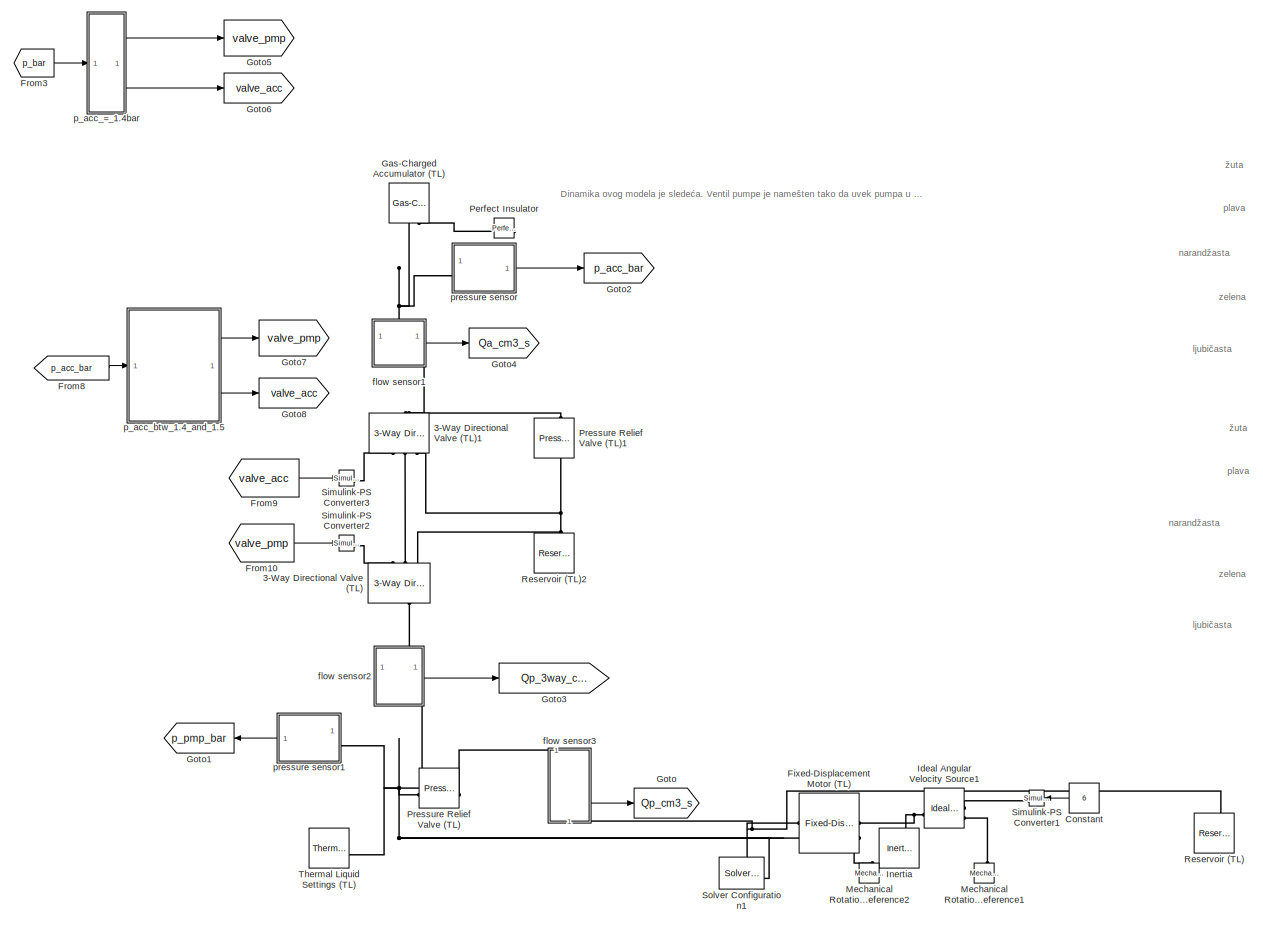
[diagram: root canvas - part 1/2, most of the canvas]
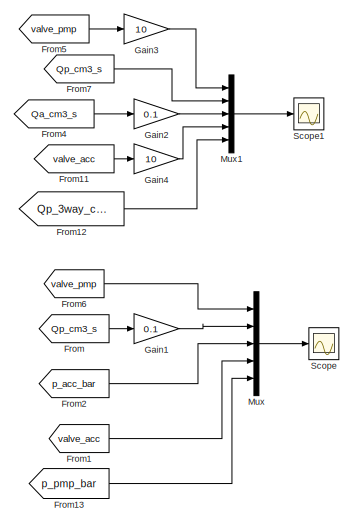
[diagram: root canvas - part 2/2, middle right region]
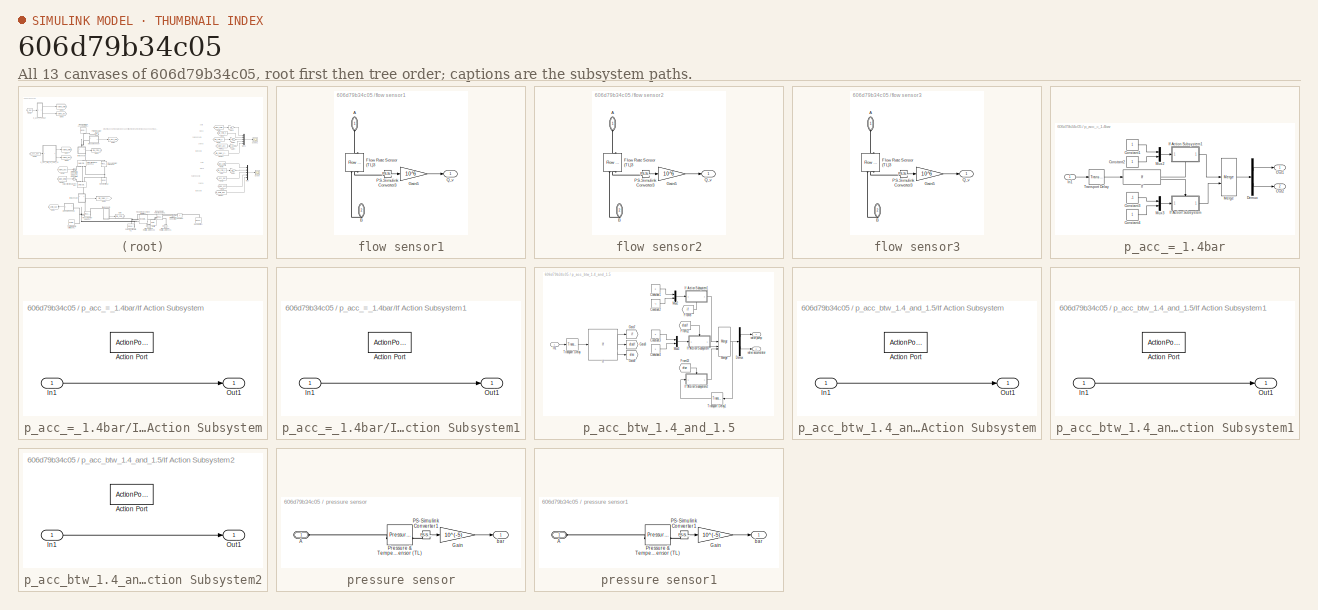
[diagram: thumbnail index - all 13 canvases of the model, root first then tree order]
MODEL slx_606d79b34c05
KIND model
CONFIG AbsTol = auto
CONFIG EnableMultiTasking = off
CONFIG FixedStep = auto
CONFIG MaxStep = auto
CONFIG MinStep = auto
CONFIG RelTol = 1e-3
CONFIG SampleTimeConstraint = Unconstrained
CONFIG SolverName = VariableStepAuto
CONFIG StartTime = 0.0
CONFIG StopTime = 30
BLOCK [Reference] 3-Way Directional Valve (TL)  REF=SimscapeFluids_lib/Thermal Liquid/Valves & Orifices/Directional Control
Valves/3-Way Directional
Valve (TL)
  NameLocation = left
  SourceBlock = SimscapeFluids_lib/Thermal Liquid/Valves & Orifices/Directional Control\nValves/3-Way Directional\nValve (TL)
  SourceType = 3-Way Directional\nValve (TL)
BLOCK [Reference] 3-Way Directional Valve (TL)1  REF=SimscapeFluids_lib/Thermal Liquid/Valves & Orifices/Directional Control
Valves/3-Way Directional
Valve (TL)
  NameLocation = right
  SourceBlock = SimscapeFluids_lib/Thermal Liquid/Valves & Orifices/Directional Control\nValves/3-Way Directional\nValve (TL)
  SourceType = 3-Way Directional\nValve (TL)
BLOCK [Constant] Constant
  NameLocation = top
  Value = 6
BLOCK [Reference] Fixed-Displacement Motor (TL)  REF=SimscapeFluids_lib/Thermal Liquid/Pumps & Motors/Fixed-Displacement
Motor (TL)
  SourceBlock = SimscapeFluids_lib/Thermal Liquid/Pumps & Motors/Fixed-Displacement\nMotor (TL)
  SourceType = Fixed-Displacement\nMotor (TL)
BLOCK [From] From
  GotoTag = Qp_cm3_s
BLOCK [From] From1
  GotoTag = valve_acc
BLOCK [From] From10
  GotoTag = valve_pmp
BLOCK [From] From11
  GotoTag = valve_acc
BLOCK [From] From12
  GotoTag = Qp_3way_cm3_s
BLOCK [From] From13
  GotoTag = p_pmp_bar
BLOCK [From] From2
  GotoTag = p_acc_bar
BLOCK [From] From3
  Commented = on
  GotoTag = p_bar
BLOCK [From] From4
  GotoTag = Qa_cm3_s
BLOCK [From] From5
  GotoTag = valve_pmp
BLOCK [From] From6
  GotoTag = valve_pmp
BLOCK [From] From7
  GotoTag = Qp_cm3_s
BLOCK [From] From8
  GotoTag = p_acc_bar
BLOCK [From] From9
  GotoTag = valve_acc
BLOCK [Gain] Gain1
  Gain = 0.1
BLOCK [Gain] Gain2
  Gain = 0.1
BLOCK [Gain] Gain3
  Gain = 10
BLOCK [Gain] Gain4
  Gain = 10
BLOCK [Reference] Gas-Charged Accumulator (TL)  REF=SimscapeFluids_lib/Thermal Liquid/Tanks & Accumulators/Gas-Charged
Accumulator (TL)
  NameLocation = right
  SourceBlock = SimscapeFluids_lib/Thermal Liquid/Tanks & Accumulators/Gas-Charged\nAccumulator (TL)
  SourceType = Gas-Charged\nAccumulator (TL)
BLOCK [Goto] Goto
  GotoTag = Qp_cm3_s
BLOCK [Goto] Goto1
  GotoTag = p_pmp_bar
  NameLocation = top
BLOCK [Goto] Goto2
  GotoTag = p_acc_bar
BLOCK [Goto] Goto3
  GotoTag = Qp_3way_cm3_s
BLOCK [Goto] Goto4
  GotoTag = Qa_cm3_s
BLOCK [Goto] Goto5
  Commented = on
  GotoTag = valve_pmp
BLOCK [Goto] Goto6
  Commented = on
  GotoTag = valve_acc
BLOCK [Goto] Goto7
  GotoTag = valve_pmp
BLOCK [Goto] Goto8
  GotoTag = valve_acc
BLOCK [Reference] Ideal Angular Velocity Source1  REF=fl_lib/Mechanical/Mechanical Sources/Ideal Angular
Velocity Source
  SourceBlock = fl_lib/Mechanical/Mechanical Sources/Ideal Angular\nVelocity Source
  SourceType = Ideal Angular\nVelocity Source
BLOCK [Reference] Inertia  REF=fl_lib/Mechanical/Rotational Elements/Inertia
  NameLocation = right
  SourceBlock = fl_lib/Mechanical/Rotational Elements/Inertia
  SourceType = Inertia
BLOCK [Reference] Mechanical Rotational Reference1  REF=fl_lib/Mechanical/Rotational Elements/Mechanical
Rotational Reference
  NameLocation = right
  SourceBlock = fl_lib/Mechanical/Rotational Elements/Mechanical\nRotational Reference
  SourceType = Mechanical\nRotational Reference
BLOCK [Reference] Mechanical Rotational Reference2  REF=fl_lib/Mechanical/Rotational Elements/Mechanical
Rotational Reference
  NameLocation = right
  SourceBlock = fl_lib/Mechanical/Rotational Elements/Mechanical\nRotational Reference
  SourceType = Mechanical\nRotational Reference
BLOCK [Mux] Mux
  DisplayOption = bar
  Inputs = 5
BLOCK [Mux] Mux1
  DisplayOption = bar
  Inputs = 5
BLOCK [Reference] Perfect Insulator  REF=fl_lib/Thermal/Thermal Elements/Perfect Insulator
  NameLocation = top
  SourceBlock = fl_lib/Thermal/Thermal Elements/Perfect Insulator
  SourceType = Perfect Insulator
BLOCK [Reference] Pressure Relief Valve (TL)  REF=SimscapeFluids_lib/Thermal Liquid/Valves & Orifices/Pressure Control
Valves/Pressure Relief
Valve (TL)
  SourceBlock = SimscapeFluids_lib/Thermal Liquid/Valves & Orifices/Pressure Control\nValves/Pressure Relief\nValve (TL)
  SourceType = Pressure Relief\nValve (TL)
BLOCK [Reference] Pressure Relief Valve (TL)1  REF=SimscapeFluids_lib/Thermal Liquid/Valves & Orifices/Pressure Control
Valves/Pressure Relief
Valve (TL)
  NameLocation = left
  SourceBlock = SimscapeFluids_lib/Thermal Liquid/Valves & Orifices/Pressure Control\nValves/Pressure Relief\nValve (TL)
  SourceType = Pressure Relief\nValve (TL)
BLOCK [Reference] Reservoir (TL)  REF=fl_lib/Thermal Liquid/Elements/Reservoir (TL)
  NameLocation = right
  SourceBlock = fl_lib/Thermal Liquid/Elements/Reservoir (TL)
  SourceType = Reservoir (TL)
BLOCK [Reference] Reservoir (TL)2  REF=fl_lib/Thermal Liquid/Elements/Reservoir (TL)
  NameLocation = right
  SourceBlock = fl_lib/Thermal Liquid/Elements/Reservoir (TL)
  SourceType = Reservoir (TL)
BLOCK [Scope] Scope
  Floating = off
  NumInputPorts = 1
  ScopeSpecificationString = Simulink.scopes.TimeScopeBlockCfg('CurrentConfiguration', extmgr.ConfigurationSet(extmgr.Configuration('Core','General UI',true),extmgr.Configuration('Core','Source UI',true),extmgr.Configuration('Sources','WiredSimulink',true),extmgr.Configuration('Visuals','Time Domain',true,'SerializedDisplays',{struct('MinYLimReal','-1.46602','MaxYLimReal','3.19416','YLabelReal','','MinYLimMag','0.00000','MaxY...<+1728ch>
BLOCK [Scope] Scope1
  Floating = off
  NumInputPorts = 1
  ScopeSpecificationString = Simulink.scopes.TimeScopeBlockCfg('CurrentConfiguration', extmgr.ConfigurationSet(extmgr.Configuration('Core','General UI',true),extmgr.Configuration('Core','Source UI',true),extmgr.Configuration('Sources','WiredSimulink',true,'DataLoggingVariableName','ScopeData1'),extmgr.Configuration('Visuals','Time Domain',true,'SerializedDisplays',{struct('MinYLimReal','-19.27761','MaxYLimReal','73.49846','YL...<+1659ch>
BLOCK [Reference] Simulink-PS Converter1  REF=nesl_utility/Simulink-PS
Converter
  NameLocation = top
  SourceBlock = nesl_utility/Simulink-PS\nConverter
  SourceType = Simulink-PS\nConverter
BLOCK [Reference] Simulink-PS Converter2  REF=nesl_utility/Simulink-PS
Converter
  SourceBlock = nesl_utility/Simulink-PS\nConverter
  SourceType = Simulink-PS\nConverter
BLOCK [Reference] Simulink-PS Converter3  REF=nesl_utility/Simulink-PS
Converter
  SourceBlock = nesl_utility/Simulink-PS\nConverter
  SourceType = Simulink-PS\nConverter
BLOCK [Reference] Solver Configuration1  REF=nesl_utility/Solver
Configuration
  SourceBlock = nesl_utility/Solver\nConfiguration
  SourceType = Solver\nConfiguration
BLOCK [Reference] Thermal Liquid Settings (TL)  REF=fl_lib/Thermal Liquid/Utilities/Thermal Liquid
Settings (TL)
  SourceBlock = fl_lib/Thermal Liquid/Utilities/Thermal Liquid\nSettings (TL)
  SourceType = Thermal Liquid\nSettings (TL)
BLOCK [SubSystem] flow sensor1
  PortSchema = {"entries":[{"content":{"sides":[{"content":{},"type":"ConnectorPlacement.EquallySpacedRectSide","uuid":"64eebb38-407b-4473-bb63-6fc68657ced3"},{"content":{"connectorIds":["Out1"],"side":"RIGHT"},"type":"ConnectorPlacement.EquallySpacedRectSide","uuid":"fe4642c7-b9bb-4607-97dc-199c5570e8b5"},{"content":{"connectorIds":["LConn1"],"side":"TOP"},"type":"ConnectorPlacement.EquallySpacedRectSide","uuid...<+378ch>
BLOCK [PMIOPort] flow sensor1/A
  NameLocation = left
  Side = Left
BLOCK [PMIOPort] flow sensor1/B
  NameLocation = left
  Port = 2
  Side = Right
BLOCK [Reference] flow sensor1/Flow Rate Sensor (TL)3  REF=fl_lib/Thermal Liquid/Sensors/Flow Rate Sensor
(TL)
  NameLocation = left
  SourceBlock = fl_lib/Thermal Liquid/Sensors/Flow Rate Sensor\n(TL)
  SourceType = Flow Rate Sensor\n(TL)
BLOCK [Gain] flow sensor1/Gain5
  Gain = 10^6
BLOCK [Reference] flow sensor1/PS-Simulink Converter3  REF=nesl_utility/PS-Simulink
Converter
  SourceBlock = nesl_utility/PS-Simulink\nConverter
  SourceType = PS-Simulink\nConverter
BLOCK [Outport] flow sensor1/Q_v
BLOCK [SubSystem] flow sensor2
  NameLocation = left
  PortSchema = {"entries":[{"content":{"sides":[{"content":{},"type":"ConnectorPlacement.EquallySpacedRectSide","uuid":"64eebb38-407b-4473-bb63-6fc68657ced3"},{"content":{"connectorIds":["Out1"],"side":"RIGHT"},"type":"ConnectorPlacement.EquallySpacedRectSide","uuid":"fe4642c7-b9bb-4607-97dc-199c5570e8b5"},{"content":{"connectorIds":["LConn1"],"side":"TOP"},"type":"ConnectorPlacement.EquallySpacedRectSide","uuid...<+378ch>
BLOCK [PMIOPort] flow sensor2/A
  NameLocation = left
  Side = Left
BLOCK [PMIOPort] flow sensor2/B
  NameLocation = left
  Port = 2
  Side = Right
BLOCK [Reference] flow sensor2/Flow Rate Sensor (TL)3  REF=fl_lib/Thermal Liquid/Sensors/Flow Rate Sensor
(TL)
  NameLocation = left
  SourceBlock = fl_lib/Thermal Liquid/Sensors/Flow Rate Sensor\n(TL)
  SourceType = Flow Rate Sensor\n(TL)
BLOCK [Gain] flow sensor2/Gain5
  Gain = 10^6
BLOCK [Reference] flow sensor2/PS-Simulink Converter3  REF=nesl_utility/PS-Simulink
Converter
  SourceBlock = nesl_utility/PS-Simulink\nConverter
  SourceType = PS-Simulink\nConverter
BLOCK [Outport] flow sensor2/Q_v
BLOCK [SubSystem] flow sensor3
  PortSchema = {"entries":[{"content":{"sides":[{"content":{},"type":"ConnectorPlacement.EquallySpacedRectSide","uuid":"64eebb38-407b-4473-bb63-6fc68657ced3"},{"content":{"side":"RIGHT"},"type":"ConnectorPlacement.EquallySpacedRectSide","uuid":"fe4642c7-b9bb-4607-97dc-199c5570e8b5"},{"content":{"connectorIds":["LConn1"],"side":"TOP"},"type":"ConnectorPlacement.EquallySpacedRectSide","uuid":"f27d07a7-79fc-4ae0-b6...<+361ch>
BLOCK [PMIOPort] flow sensor3/A
  NameLocation = left
  Side = Left
BLOCK [PMIOPort] flow sensor3/B
  NameLocation = left
  Port = 2
  Side = Right
BLOCK [Reference] flow sensor3/Flow Rate Sensor (TL)3  REF=fl_lib/Thermal Liquid/Sensors/Flow Rate Sensor
(TL)
  NameLocation = left
  SourceBlock = fl_lib/Thermal Liquid/Sensors/Flow Rate Sensor\n(TL)
  SourceType = Flow Rate Sensor\n(TL)
BLOCK [Gain] flow sensor3/Gain5
  Gain = 10^6
BLOCK [Reference] flow sensor3/PS-Simulink Converter3  REF=nesl_utility/PS-Simulink
Converter
  SourceBlock = nesl_utility/PS-Simulink\nConverter
  SourceType = PS-Simulink\nConverter
BLOCK [Outport] flow sensor3/Q_v
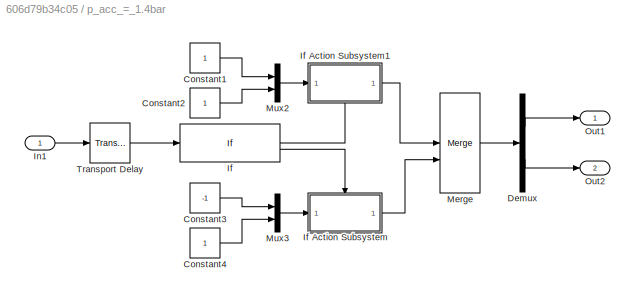
BLOCK [SubSystem] p_acc_=_1.4bar
  Commented = on
BLOCK [Constant] p_acc_=_1.4bar/Constant1
BLOCK [Constant] p_acc_=_1.4bar/Constant2
BLOCK [Constant] p_acc_=_1.4bar/Constant3
  Value = -1
BLOCK [Constant] p_acc_=_1.4bar/Constant4
BLOCK [Demux] p_acc_=_1.4bar/Demux
  Outputs = 2
BLOCK [If] p_acc_=_1.4bar/If
  IfExpression = u1 > 1.4
BLOCK [SubSystem] p_acc_=_1.4bar/If Action Subsystem
  TreatAsAtomicUnit = on
BLOCK [ActionPort] p_acc_=_1.4bar/If Action Subsystem/Action Port
  ActionPortLabel = else
BLOCK [Inport] p_acc_=_1.4bar/If Action Subsystem/In1
BLOCK [Outport] p_acc_=_1.4bar/If Action Subsystem/Out1
  InitialOutput = [0 0]
BLOCK [SubSystem] p_acc_=_1.4bar/If Action Subsystem1
  NameLocation = top
  TreatAsAtomicUnit = on
BLOCK [ActionPort] p_acc_=_1.4bar/If Action Subsystem1/Action Port
  ActionPortLabel = if(u1 > 1.4)
BLOCK [Inport] p_acc_=_1.4bar/If Action Subsystem1/In1
BLOCK [Outport] p_acc_=_1.4bar/If Action Subsystem1/Out1
  InitialOutput = [0 0]
BLOCK [Inport] p_acc_=_1.4bar/In1
BLOCK [Merge] p_acc_=_1.4bar/Merge
BLOCK [Mux] p_acc_=_1.4bar/Mux2
  DisplayOption = bar
  Inputs = 2
BLOCK [Mux] p_acc_=_1.4bar/Mux3
  DisplayOption = bar
  Inputs = 2
BLOCK [Outport] p_acc_=_1.4bar/Out1
BLOCK [Outport] p_acc_=_1.4bar/Out2
  Port = 2
BLOCK [TransportDelay] p_acc_=_1.4bar/Transport Delay
  DelayTime = 0.001
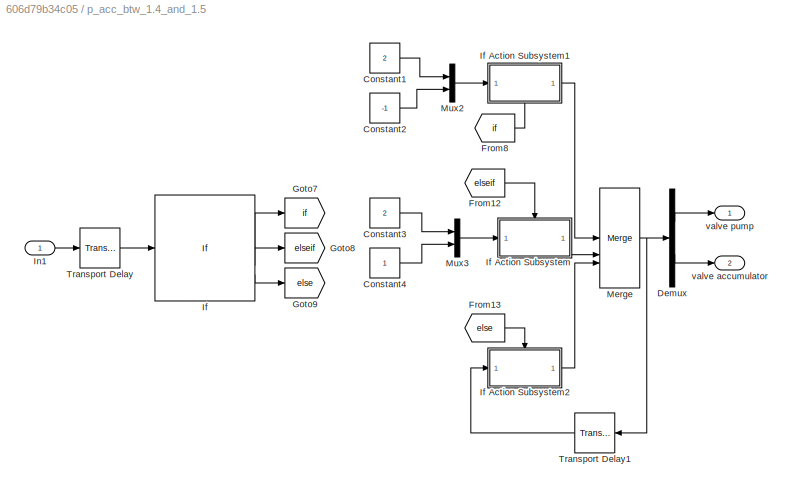
BLOCK [SubSystem] p_acc_btw_1.4_and_1.5
BLOCK [Constant] p_acc_btw_1.4_and_1.5/Constant1
  Value = 2
BLOCK [Constant] p_acc_btw_1.4_and_1.5/Constant2
  Value = -1
BLOCK [Constant] p_acc_btw_1.4_and_1.5/Constant3
  Value = 2
BLOCK [Constant] p_acc_btw_1.4_and_1.5/Constant4
BLOCK [Demux] p_acc_btw_1.4_and_1.5/Demux
  Outputs = 2
BLOCK [From] p_acc_btw_1.4_and_1.5/From12
  GotoTag = elseif
BLOCK [From] p_acc_btw_1.4_and_1.5/From13
  GotoTag = else
BLOCK [From] p_acc_btw_1.4_and_1.5/From8
  GotoTag = if
BLOCK [Goto] p_acc_btw_1.4_and_1.5/Goto7
  GotoTag = if
BLOCK [Goto] p_acc_btw_1.4_and_1.5/Goto8
  GotoTag = elseif
BLOCK [Goto] p_acc_btw_1.4_and_1.5/Goto9
  GotoTag = else
BLOCK [If] p_acc_btw_1.4_and_1.5/If
  ElseIfExpressions = u1 < 1.4
  IfExpression = u1 > 1.5
BLOCK [SubSystem] p_acc_btw_1.4_and_1.5/If Action Subsystem
  TreatAsAtomicUnit = on
BLOCK [ActionPort] p_acc_btw_1.4_and_1.5/If Action Subsystem/Action Port
  ActionPortLabel = elseif(u1 < 1.4)
BLOCK [Inport] p_acc_btw_1.4_and_1.5/If Action Subsystem/In1
BLOCK [Outport] p_acc_btw_1.4_and_1.5/If Action Subsystem/Out1
  InitialOutput = [0 0]
BLOCK [SubSystem] p_acc_btw_1.4_and_1.5/If Action Subsystem1
  NameLocation = top
  TreatAsAtomicUnit = on
BLOCK [ActionPort] p_acc_btw_1.4_and_1.5/If Action Subsystem1/Action Port
  ActionPortLabel = if(u1 > 1.5)
BLOCK [Inport] p_acc_btw_1.4_and_1.5/If Action Subsystem1/In1
BLOCK [Outport] p_acc_btw_1.4_and_1.5/If Action Subsystem1/Out1
  InitialOutput = [0 0]
BLOCK [SubSystem] p_acc_btw_1.4_and_1.5/If Action Subsystem2
  TreatAsAtomicUnit = on
BLOCK [ActionPort] p_acc_btw_1.4_and_1.5/If Action Subsystem2/Action Port
  ActionPortLabel = else
BLOCK [Inport] p_acc_btw_1.4_and_1.5/If Action Subsystem2/In1
BLOCK [Outport] p_acc_btw_1.4_and_1.5/If Action Subsystem2/Out1
  InitialOutput = [0 0]
BLOCK [Inport] p_acc_btw_1.4_and_1.5/In1
BLOCK [Merge] p_acc_btw_1.4_and_1.5/Merge
  Inputs = 3
BLOCK [Mux] p_acc_btw_1.4_and_1.5/Mux2
  DisplayOption = bar
  Inputs = 2
BLOCK [Mux] p_acc_btw_1.4_and_1.5/Mux3
  DisplayOption = bar
  Inputs = 2
BLOCK [TransportDelay] p_acc_btw_1.4_and_1.5/Transport Delay
  DelayTime = 0.001
BLOCK [TransportDelay] p_acc_btw_1.4_and_1.5/Transport Delay1
  DelayTime = 0.001
  NameLocation = top
BLOCK [Outport] p_acc_btw_1.4_and_1.5/valve accumulator
  Port = 2
BLOCK [Outport] p_acc_btw_1.4_and_1.5/valve pump
BLOCK [SubSystem] pressure sensor
BLOCK [PMIOPort] pressure sensor/A
  Side = Left
BLOCK [Gain] pressure sensor/Gain
  Gain = 10^(-5)
BLOCK [Reference] pressure sensor/PS-Simulink Converter1  REF=nesl_utility/PS-Simulink
Converter
  SourceBlock = nesl_utility/PS-Simulink\nConverter
  SourceType = PS-Simulink\nConverter
BLOCK [Reference] pressure sensor/Pressure & Temperature Sensor (TL)  REF=fl_lib/Thermal Liquid/Sensors/Pressure &
Temperature Sensor
(TL)
  SourceBlock = fl_lib/Thermal Liquid/Sensors/Pressure &\nTemperature Sensor\n(TL)
  SourceType = Pressure &\nTemperature Sensor\n(TL)
BLOCK [Outport] pressure sensor/bar
BLOCK [SubSystem] pressure sensor1
  NameLocation = top
BLOCK [PMIOPort] pressure sensor1/A
  Side = Left
BLOCK [Gain] pressure sensor1/Gain
  Gain = 10^(-5)
BLOCK [Reference] pressure sensor1/PS-Simulink Converter1  REF=nesl_utility/PS-Simulink
Converter
  SourceBlock = nesl_utility/PS-Simulink\nConverter
  SourceType = PS-Simulink\nConverter
BLOCK [Reference] pressure sensor1/Pressure & Temperature Sensor (TL)  REF=fl_lib/Thermal Liquid/Sensors/Pressure &
Temperature Sensor
(TL)
  SourceBlock = fl_lib/Thermal Liquid/Sensors/Pressure &\nTemperature Sensor\n(TL)
  SourceType = Pressure &\nTemperature Sensor\n(TL)
BLOCK [Outport] pressure sensor1/bar
ANNOTATION (root): Dinamika ovog modela je sledeća. Ventil pumpe je namešten tako da uvek pumpa u akumulator (A-P). Kada je pritisak u akumulatoru postane veći od 1.5 bara, tada ventil akm. usmerava ulje iz akumulatora ka tenku/rezervoaru (A-T). Ulje iz akm. se odvodi u rezervoar, sve dok pritisak ne padne do 1.4 bar. Kad padne dotle, onda se ventil akumulatora namesti tako da pumpa može da pumpa u njega (P-A). Nako...<+70ch>
ANNOTATION (root): zelena
ANNOTATION (root): plava
ANNOTATION (root): narandžasta
ANNOTATION (root): žuta
ANNOTATION (root): ljubičasta
LINE Constant:1 -> Simulink-PS Converter1:1
LINE From10:1 -> Simulink-PS Converter2:1
LINE From11:1 -> Gain4:1
LINE From12:1 -> Mux1:5
LINE From13:1 -> Mux:5
LINE From1:1 -> Mux:4
LINE From2:1 -> Mux:3
LINE From3:1 -> p_acc_=_1.4bar:1
LINE From4:1 -> Gain2:1
LINE From5:1 -> Gain3:1
LINE From6:1 -> Mux:1
LINE From7:1 -> Mux1:2
LINE From8:1 -> p_acc_btw_1.4_and_1.5:1
LINE From9:1 -> Simulink-PS Converter3:1
LINE From:1 -> Gain1:1
LINE Gain1:1 -> Mux:2
LINE Gain2:1 -> Mux1:3
LINE Gain3:1 -> Mux1:1
LINE Gain4:1 -> Mux1:4
LINE Mux1:1 -> Scope1:1
LINE Mux:1 -> Scope:1
LINE flow sensor1/Gain5:1 -> flow sensor1/Q_v:1
LINE flow sensor1/PS-Simulink Converter3:1 -> flow sensor1/Gain5:1
LINE flow sensor1:1 -> Goto4:1
LINE flow sensor2/Gain5:1 -> flow sensor2/Q_v:1
LINE flow sensor2/PS-Simulink Converter3:1 -> flow sensor2/Gain5:1
LINE flow sensor2:1 -> Goto3:1
LINE flow sensor3/Gain5:1 -> flow sensor3/Q_v:1
LINE flow sensor3/PS-Simulink Converter3:1 -> flow sensor3/Gain5:1
LINE flow sensor3:1 -> Goto:1
LINE p_acc_=_1.4bar/Constant1:1 -> p_acc_=_1.4bar/Mux2:1
LINE p_acc_=_1.4bar/Constant2:1 -> p_acc_=_1.4bar/Mux2:2
LINE p_acc_=_1.4bar/Constant3:1 -> p_acc_=_1.4bar/Mux3:1
LINE p_acc_=_1.4bar/Constant4:1 -> p_acc_=_1.4bar/Mux3:2
LINE p_acc_=_1.4bar/Demux:1 -> p_acc_=_1.4bar/Out1:1
LINE p_acc_=_1.4bar/Demux:2 -> p_acc_=_1.4bar/Out2:1
LINE p_acc_=_1.4bar/If Action Subsystem/In1:1 -> p_acc_=_1.4bar/If Action Subsystem/Out1:1
LINE p_acc_=_1.4bar/If Action Subsystem1/In1:1 -> p_acc_=_1.4bar/If Action Subsystem1/Out1:1
LINE p_acc_=_1.4bar/If Action Subsystem1:1 -> p_acc_=_1.4bar/Merge:1
LINE p_acc_=_1.4bar/If Action Subsystem:1 -> p_acc_=_1.4bar/Merge:2
LINE p_acc_=_1.4bar/If:1 -> p_acc_=_1.4bar/If Action Subsystem1:ifaction
LINE p_acc_=_1.4bar/If:2 -> p_acc_=_1.4bar/If Action Subsystem:ifaction
LINE p_acc_=_1.4bar/In1:1 -> p_acc_=_1.4bar/Transport Delay:1
LINE p_acc_=_1.4bar/Merge:1 -> p_acc_=_1.4bar/Demux:1
LINE p_acc_=_1.4bar/Mux2:1 -> p_acc_=_1.4bar/If Action Subsystem1:1
LINE p_acc_=_1.4bar/Mux3:1 -> p_acc_=_1.4bar/If Action Subsystem:1
LINE p_acc_=_1.4bar/Transport Delay:1 -> p_acc_=_1.4bar/If:1
LINE p_acc_=_1.4bar:1 -> Goto5:1
LINE p_acc_=_1.4bar:2 -> Goto6:1
LINE p_acc_btw_1.4_and_1.5/Constant1:1 -> p_acc_btw_1.4_and_1.5/Mux2:1
LINE p_acc_btw_1.4_and_1.5/Constant2:1 -> p_acc_btw_1.4_and_1.5/Mux2:2
LINE p_acc_btw_1.4_and_1.5/Constant3:1 -> p_acc_btw_1.4_and_1.5/Mux3:1
LINE p_acc_btw_1.4_and_1.5/Constant4:1 -> p_acc_btw_1.4_and_1.5/Mux3:2
LINE p_acc_btw_1.4_and_1.5/Demux:1 -> p_acc_btw_1.4_and_1.5/valve pump:1
LINE p_acc_btw_1.4_and_1.5/Demux:2 -> p_acc_btw_1.4_and_1.5/valve accumulator:1
LINE p_acc_btw_1.4_and_1.5/From12:1 -> p_acc_btw_1.4_and_1.5/If Action Subsystem:ifaction
LINE p_acc_btw_1.4_and_1.5/From13:1 -> p_acc_btw_1.4_and_1.5/If Action Subsystem2:ifaction
LINE p_acc_btw_1.4_and_1.5/From8:1 -> p_acc_btw_1.4_and_1.5/If Action Subsystem1:ifaction
LINE p_acc_btw_1.4_and_1.5/If Action Subsystem/In1:1 -> p_acc_btw_1.4_and_1.5/If Action Subsystem/Out1:1
LINE p_acc_btw_1.4_and_1.5/If Action Subsystem1/In1:1 -> p_acc_btw_1.4_and_1.5/If Action Subsystem1/Out1:1
LINE p_acc_btw_1.4_and_1.5/If Action Subsystem1:1 -> p_acc_btw_1.4_and_1.5/Merge:1
LINE p_acc_btw_1.4_and_1.5/If Action Subsystem2/In1:1 -> p_acc_btw_1.4_and_1.5/If Action Subsystem2/Out1:1
LINE p_acc_btw_1.4_and_1.5/If Action Subsystem2:1 -> p_acc_btw_1.4_and_1.5/Merge:3
LINE p_acc_btw_1.4_and_1.5/If Action Subsystem:1 -> p_acc_btw_1.4_and_1.5/Merge:2
LINE p_acc_btw_1.4_and_1.5/If:1 -> p_acc_btw_1.4_and_1.5/Goto7:1
LINE p_acc_btw_1.4_and_1.5/If:2 -> p_acc_btw_1.4_and_1.5/Goto8:1
LINE p_acc_btw_1.4_and_1.5/If:3 -> p_acc_btw_1.4_and_1.5/Goto9:1
LINE p_acc_btw_1.4_and_1.5/In1:1 -> p_acc_btw_1.4_and_1.5/Transport Delay:1
NET p_acc_btw_1.4_and_1.5/Merge:1 -> p_acc_btw_1.4_and_1.5/Demux:1, p_acc_btw_1.4_and_1.5/Transport Delay1:1
LINE p_acc_btw_1.4_and_1.5/Mux2:1 -> p_acc_btw_1.4_and_1.5/If Action Subsystem1:1
LINE p_acc_btw_1.4_and_1.5/Mux3:1 -> p_acc_btw_1.4_and_1.5/If Action Subsystem:1
LINE p_acc_btw_1.4_and_1.5/Transport Delay1:1 -> p_acc_btw_1.4_and_1.5/If Action Subsystem2:1
LINE p_acc_btw_1.4_and_1.5/Transport Delay:1 -> p_acc_btw_1.4_and_1.5/If:1
LINE p_acc_btw_1.4_and_1.5:1 -> Goto7:1
LINE p_acc_btw_1.4_and_1.5:2 -> Goto8:1
LINE pressure sensor/Gain:1 -> pressure sensor/bar:1
LINE pressure sensor/PS-Simulink Converter1:1 -> pressure sensor/Gain:1
LINE pressure sensor1/Gain:1 -> pressure sensor1/bar:1
LINE pressure sensor1/PS-Simulink Converter1:1 -> pressure sensor1/Gain:1
LINE pressure sensor1:1 -> Goto1:1
LINE pressure sensor:1 -> Goto2:1
PNET net1: 3-Way Directional Valve (TL)1:LConn1 -- Pressure Relief Valve (TL)1:LConn1 -- flow sensor1:RConn1
PLINE 3-Way Directional Valve (TL)1:RConn1 -- Simulink-PS Converter3:RConn1
PLINE 3-Way Directional Valve (TL)1:RConn2 -- 3-Way Directional Valve (TL):RConn2
PNET net2: 3-Way Directional Valve (TL)1:RConn3 -- 3-Way Directional Valve (TL):RConn3 -- Pressure Relief Valve (TL)1:RConn1 -- Reservoir (TL)2:LConn1
PLINE 3-Way Directional Valve (TL):LConn1 -- flow sensor2:RConn1
PLINE 3-Way Directional Valve (TL):RConn1 -- Simulink-PS Converter2:RConn1
PNET net3: Fixed-Displacement Motor (TL):LConn1 -- Reservoir (TL):LConn1 -- flow sensor3:RConn1
PNET net4: Fixed-Displacement Motor (TL):LConn2 -- Pressure Relief Valve (TL):LConn1 -- Solver Configuration1:RConn1 -- Thermal Liquid Settings (TL):RConn1 -- flow sensor2:LConn1 -- pressure sensor1:LConn1
PNET net5: Fixed-Displacement Motor (TL):RConn1 -- Ideal Angular Velocity Source1:LConn1 -- Inertia:LConn1
PLINE Fixed-Displacement Motor (TL):RConn2 -- Mechanical Rotational Reference2:LConn1
PNET net6: Gas-Charged Accumulator (TL):RConn1 -- flow sensor1:LConn1 -- pressure sensor:LConn1
PLINE Gas-Charged Accumulator (TL):RConn2 -- Perfect Insulator:LConn1
PLINE Ideal Angular Velocity Source1:RConn1 -- Simulink-PS Converter1:RConn1
PLINE Ideal Angular Velocity Source1:RConn2 -- Mechanical Rotational Reference1:LConn1
PLINE Pressure Relief Valve (TL):RConn1 -- flow sensor3:LConn1
PLINE flow sensor1/A:RConn1 -- flow sensor1/Flow Rate Sensor (TL)3:LConn1
PLINE flow sensor1/B:RConn1 -- flow sensor1/Flow Rate Sensor (TL)3:RConn1
PLINE flow sensor1/Flow Rate Sensor (TL)3:RConn3 -- flow sensor1/PS-Simulink Converter3:LConn1
PLINE flow sensor2/A:RConn1 -- flow sensor2/Flow Rate Sensor (TL)3:LConn1
PLINE flow sensor2/B:RConn1 -- flow sensor2/Flow Rate Sensor (TL)3:RConn1
PLINE flow sensor2/Flow Rate Sensor (TL)3:RConn3 -- flow sensor2/PS-Simulink Converter3:LConn1
PLINE flow sensor3/A:RConn1 -- flow sensor3/Flow Rate Sensor (TL)3:LConn1
PLINE flow sensor3/B:RConn1 -- flow sensor3/Flow Rate Sensor (TL)3:RConn1
PLINE flow sensor3/Flow Rate Sensor (TL)3:RConn3 -- flow sensor3/PS-Simulink Converter3:LConn1
PLINE pressure sensor/A:RConn1 -- pressure sensor/Pressure & Temperature Sensor (TL):LConn1
PLINE pressure sensor/PS-Simulink Converter1:LConn1 -- pressure sensor/Pressure & Temperature Sensor (TL):RConn1
PLINE pressure sensor1/A:RConn1 -- pressure sensor1/Pressure & Temperature Sensor (TL):LConn1
PLINE pressure sensor1/PS-Simulink Converter1:LConn1 -- pressure sensor1/Pressure & Temperature Sensor (TL):RConn1
note: NET lines group one-source signal fan-out (src -> all destinations, sorted); 1:1 wires keep LINE; PNET lines group multi-terminal physical nets as a canonical sorted terminal list (undirected conserving connections); 2-terminal nets keep the pairwise PLINE form
